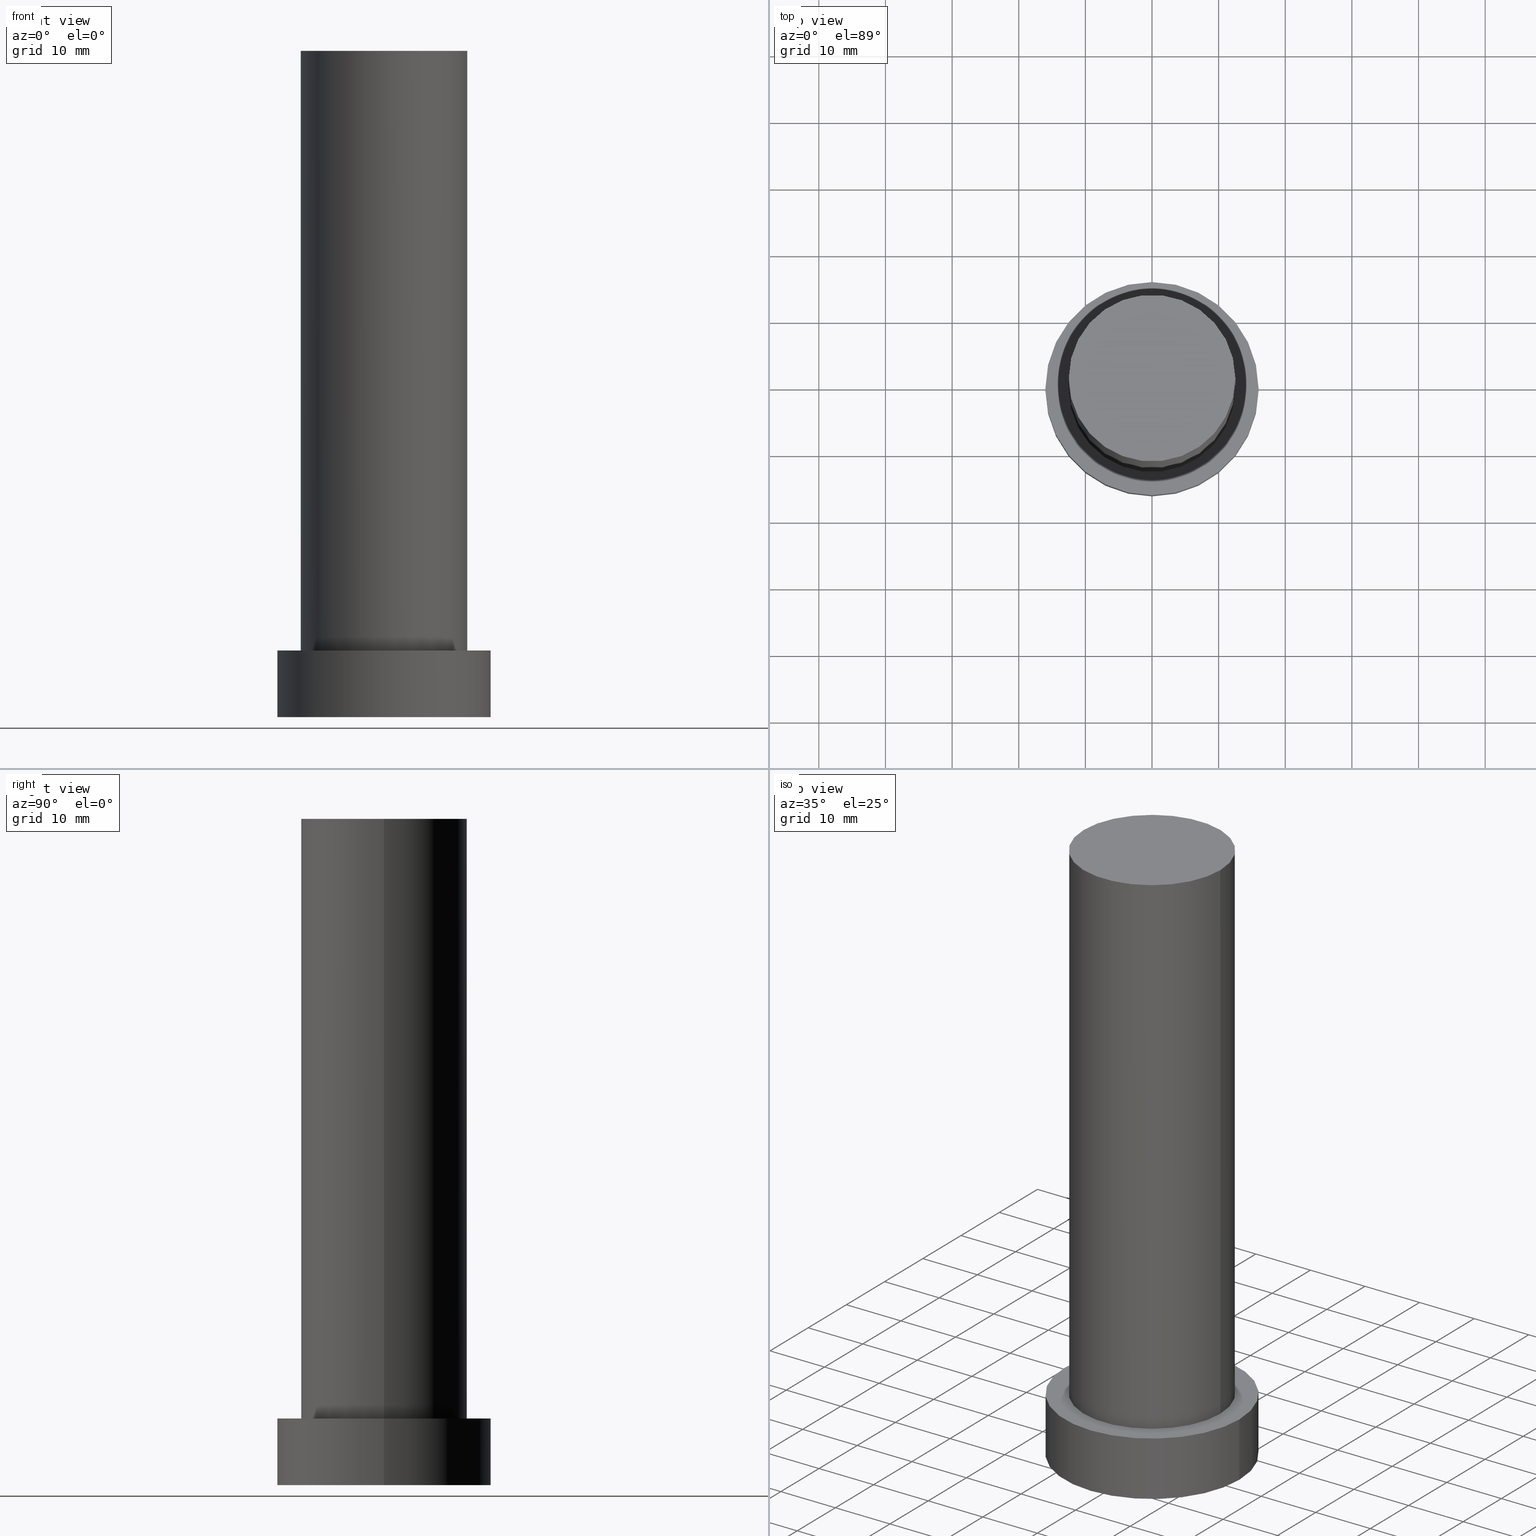
[diagram: canonical four-view strip — front | top / right | iso, engineering-drawing reading convention]
A machine part, canonical four-view strip (front | top / right | iso — engineering-drawing reading convention). The complete STEP part file that produces these views, byte-faithful:
ISO-10303-21;
HEADER;
FILE_DESCRIPTION (( 'STEP AP203' ),
    '1' );
FILE_NAME ('8e11.STEP',
    '2026-02-06T12:35:35',
    ( '' ),
    ( '' ),
    'SwSTEP 2.0',
    'SolidWorks 2019',
    '' );
FILE_SCHEMA (( 'CONFIG_CONTROL_DESIGN' ));
ENDSEC;

DATA;
#1 = CARTESIAN_POINT ( 'NONE',  ( -12.50000000000000000, 0.000000000000000000, 99.99999999999998579 ) ) ;
#2 = PRODUCT_DEFINITION_SHAPE ( 'NONE', 'NONE',  #251 ) ;
#3 = APPROVAL_STATUS ( 'not_yet_approved' ) ;
#4 = ADVANCED_FACE ( 'NONE', ( #96 ), #15, .T. ) ;
#5 = VERTEX_POINT ( 'NONE', #40 ) ;
#6 = VERTEX_POINT ( 'NONE', #191 ) ;
#7 = PLANE ( 'NONE',  #16 ) ;
#8 = DIRECTION ( 'NONE',  ( 0.000000000000000000, 0.000000000000000000, 1.000000000000000000 ) ) ;
#9 = CARTESIAN_POINT ( 'NONE',  ( 0.000000000000000000, 0.000000000000000000, 10.00000000000000000 ) ) ;
#10 = CARTESIAN_POINT ( 'NONE',  ( 0.000000000000000000, 0.000000000000000000, 99.99999999999998579 ) ) ;
#11 = FACE_OUTER_BOUND ( 'NONE', #241, .T. ) ;
#12 =( NAMED_UNIT ( * ) SI_UNIT ( $, .STERADIAN. ) SOLID_ANGLE_UNIT ( ) );
#13 = DATE_TIME_ROLE ( 'creation_date' ) ;
#14 = ADVANCED_FACE ( 'NONE', ( #236, #157 ), #58, .T. ) ;
#15 = CYLINDRICAL_SURFACE ( 'NONE', #93, 16.00000000000000000 ) ;
#16 = AXIS2_PLACEMENT_3D ( 'NONE', #123, #91, #169 ) ;
#17 = DIRECTION ( 'NONE',  ( 0.000000000000000000, 0.000000000000000000, 1.000000000000000000 ) ) ;
#18 = CARTESIAN_POINT ( 'NONE',  ( 0.000000000000000000, 0.000000000000000000, 10.00000000000000000 ) ) ;
#19 = APPROVAL_DATE_TIME ( #197, #188 ) ;
#20 = SECURITY_CLASSIFICATION ( '', '', #81 ) ;
#21 = VERTEX_POINT ( 'NONE', #212 ) ;
#22 = DATE_AND_TIME ( #124, #38 ) ;
#23 = DIRECTION ( 'NONE',  ( 1.000000000000000000, 0.000000000000000000, 0.000000000000000000 ) ) ;
#24 = APPROVAL_STATUS ( 'not_yet_approved' ) ;
#25 = EDGE_CURVE ( 'NONE', #5, #83, #175, .T. ) ;
#26 = VERTEX_POINT ( 'NONE', #1 ) ;
#27 = CC_DESIGN_APPROVAL ( #47, ( #20 ) ) ;
#28 = CARTESIAN_POINT ( 'NONE',  ( 0.000000000000000000, 0.000000000000000000, 0.000000000000000000 ) ) ;
#29 = ADVANCED_FACE ( 'NONE', ( #135 ), #56, .T. ) ;
#30 = COORDINATED_UNIVERSAL_TIME_OFFSET ( 1, 0, .AHEAD. ) ;
#31 = AXIS2_PLACEMENT_3D ( 'NONE', #28, #8, #65 ) ;
#32 = CARTESIAN_POINT ( 'NONE',  ( 0.000000000000000000, 0.000000000000000000, 10.00000000000000000 ) ) ;
#33 = EDGE_CURVE ( 'NONE', #6, #83, #131, .T. ) ;
#34 = AXIS2_PLACEMENT_3D ( 'NONE', #242, #177, #239 ) ;
#35 = CIRCLE ( 'NONE', #226, 12.50000000000000000 ) ;
#36 = CIRCLE ( 'NONE', #151, 16.00000000000000000 ) ;
#37 =( LENGTH_UNIT ( ) NAMED_UNIT ( * ) SI_UNIT ( .MILLI., .METRE. ) );
#38 = LOCAL_TIME ( 13, 35, 35.00000000000000000, #249 ) ;
#39 = DIRECTION ( 'NONE',  ( 1.000000000000000000, 0.000000000000000000, 0.000000000000000000 ) ) ;
#40 = CARTESIAN_POINT ( 'NONE',  ( 12.50000000000000000, 1.530808498934191127E-15, 99.99999999999998579 ) ) ;
#41 = DIRECTION ( 'NONE',  ( 1.000000000000000000, 0.000000000000000000, 0.000000000000000000 ) ) ;
#42 = DIRECTION ( 'NONE',  ( -0.000000000000000000, -0.000000000000000000, -1.000000000000000000 ) ) ;
#43 = APPLICATION_PROTOCOL_DEFINITION ( 'international standard', 'config_control_design', 1994, #189 ) ;
#44 = CARTESIAN_POINT ( 'NONE',  ( 12.50000000000000000, 1.530808498934191127E-15, 10.00000000000000000 ) ) ;
#45 = ORIENTED_EDGE ( 'NONE', *, *, #254, .F. ) ;
#46 = EDGE_CURVE ( 'NONE', #26, #5, #80, .T. ) ;
#47 = APPROVAL ( #24, 'NEUR�EN�' ) ;
#48 = ORIENTED_EDGE ( 'NONE', *, *, #90, .F. ) ;
#49 = CALENDAR_DATE ( 2026, 6, 2 ) ;
#50 = ORIENTED_EDGE ( 'NONE', *, *, #254, .T. ) ;
#51 = DIRECTION ( 'NONE',  ( 0.000000000000000000, 0.000000000000000000, 1.000000000000000000 ) ) ;
#52 = CARTESIAN_POINT ( 'NONE',  ( 0.000000000000000000, 0.000000000000000000, 10.00000000000000000 ) ) ;
#53 = CARTESIAN_POINT ( 'NONE',  ( -16.00000000000000000, 0.000000000000000000, 10.00000000000000000 ) ) ;
#54 = AXIS2_PLACEMENT_3D ( 'NONE', #171, #68, #107 ) ;
#55 = MECHANICAL_CONTEXT ( 'NONE', #78, 'mechanical' ) ;
#56 = CYLINDRICAL_SURFACE ( 'NONE', #243, 12.50000000000000000 ) ;
#57 = DIRECTION ( 'NONE',  ( 0.000000000000000000, 0.000000000000000000, 1.000000000000000000 ) ) ;
#58 = PLANE ( 'NONE',  #232 ) ;
#59 = APPROVAL_ROLE ( '' ) ;
#60 = ORIENTED_EDGE ( 'NONE', *, *, #147, .F. ) ;
#61 = AXIS2_PLACEMENT_3D ( 'NONE', #10, #88, #228 ) ;
#62 = PERSON_AND_ORGANIZATION ( #245, #71 ) ;
#63 = EDGE_LOOP ( 'NONE', ( #74, #165, #218, #50 ) ) ;
#64 = LINE ( 'NONE', #125, #200 ) ;
#65 = DIRECTION ( 'NONE',  ( 1.000000000000000000, 0.000000000000000000, 0.000000000000000000 ) ) ;
#66 = APPROVAL_ROLE ( '' ) ;
#67 = DIRECTION ( 'NONE',  ( -0.000000000000000000, -0.000000000000000000, -1.000000000000000000 ) ) ;
#68 = DIRECTION ( 'NONE',  ( 0.000000000000000000, 0.000000000000000000, 1.000000000000000000 ) ) ;
#69 = ADVANCED_FACE ( 'NONE', ( #159 ), #133, .F. ) ;
#70 = DIRECTION ( 'NONE',  ( -0.000000000000000000, -0.000000000000000000, -1.000000000000000000 ) ) ;
#71 = ORGANIZATION ( 'NEUR�EN�', 'NEUR�EN�', '' ) ;
#72 = DIRECTION ( 'NONE',  ( -0.000000000000000000, -0.000000000000000000, -1.000000000000000000 ) ) ;
#73 = APPROVAL_DATE_TIME ( #192, #84 ) ;
#74 = ORIENTED_EDGE ( 'NONE', *, *, #154, .F. ) ;
#75 = DIRECTION ( 'NONE',  ( -1.000000000000000000, 0.000000000000000000, 0.000000000000000000 ) ) ;
#76 = DATE_AND_TIME ( #237, #160 ) ;
#77 = APPROVAL_PERSON_ORGANIZATION ( #102, #188, #59 ) ;
#78 = APPLICATION_CONTEXT ( 'configuration controlled 3d designs of mechanical parts and assemblies' ) ;
#79 = EDGE_LOOP ( 'NONE', ( #45, #117 ) ) ;
#80 = CIRCLE ( 'NONE', #227, 12.50000000000000000 ) ;
#81 = SECURITY_CLASSIFICATION_LEVEL ( 'unclassified' ) ;
#82 = EDGE_CURVE ( 'NONE', #164, #185, #223, .T. ) ;
#83 = VERTEX_POINT ( 'NONE', #44 ) ;
#84 = APPROVAL ( #3, 'NEUR�EN�' ) ;
#85 = PRODUCT_DEFINITION_FORMATION_WITH_SPECIFIED_SOURCE ( 'LIBOVOLN�', '', #118, .NOT_KNOWN. ) ;
#86 = ORIENTED_EDGE ( 'NONE', *, *, #90, .T. ) ;
#87 = FACE_OUTER_BOUND ( 'NONE', #244, .T. ) ;
#88 = DIRECTION ( 'NONE',  ( -0.000000000000000000, -0.000000000000000000, -1.000000000000000000 ) ) ;
#89 = DIRECTION ( 'NONE',  ( 1.000000000000000000, 0.000000000000000000, 0.000000000000000000 ) ) ;
#90 = EDGE_CURVE ( 'NONE', #26, #6, #178, .T. ) ;
#91 = DIRECTION ( 'NONE',  ( 0.000000000000000000, 0.000000000000000000, 1.000000000000000000 ) ) ;
#92 = ADVANCED_BREP_SHAPE_REPRESENTATION ( '8e11', ( #255, #34 ), #113 ) ;
#93 = AXIS2_PLACEMENT_3D ( 'NONE', #193, #42, #75 ) ;
#94 = DIRECTION ( 'NONE',  ( 0.000000000000000000, 0.000000000000000000, 1.000000000000000000 ) ) ;
#95 = ADVANCED_FACE ( 'NONE', ( #11 ), #170, .T. ) ;
#96 = FACE_OUTER_BOUND ( 'NONE', #63, .T. ) ;
#97 = PERSON_AND_ORGANIZATION_ROLE ( 'creator' ) ;
#98 = AXIS2_PLACEMENT_3D ( 'NONE', #155, #128, #41 ) ;
#99 = DIRECTION ( 'NONE',  ( 1.000000000000000000, 0.000000000000000000, -0.000000000000000000 ) ) ;
#100 = CC_DESIGN_PERSON_AND_ORGANIZATION_ASSIGNMENT ( #219, #104, ( #85 ) ) ;
#101 = CARTESIAN_POINT ( 'NONE',  ( 0.000000000000000000, 0.000000000000000000, 99.99999999999998579 ) ) ;
#102 = PERSON_AND_ORGANIZATION ( #245, #71 ) ;
#103 = ORIENTED_EDGE ( 'NONE', *, *, #25, .T. ) ;
#104 = PERSON_AND_ORGANIZATION_ROLE ( 'design_supplier' ) ;
#105 = ORIENTED_EDGE ( 'NONE', *, *, #25, .F. ) ;
#106 = FACE_OUTER_BOUND ( 'NONE', #182, .T. ) ;
#107 = DIRECTION ( 'NONE',  ( 1.000000000000000000, 0.000000000000000000, 0.000000000000000000 ) ) ;
#108 = AXIS2_PLACEMENT_3D ( 'NONE', #52, #67, #248 ) ;
#109 = ADVANCED_FACE ( 'NONE', ( #87 ), #152, .T. ) ;
#110 = DIRECTION ( 'NONE',  ( -0.000000000000000000, -0.000000000000000000, -1.000000000000000000 ) ) ;
#111 = VECTOR ( 'NONE', #110, 1000.000000000000000 ) ;
#112 = ORIENTED_EDGE ( 'NONE', *, *, #201, .T. ) ;
#113 =( GEOMETRIC_REPRESENTATION_CONTEXT ( 3 ) GLOBAL_UNCERTAINTY_ASSIGNED_CONTEXT ( ( #199 ) ) GLOBAL_UNIT_ASSIGNED_CONTEXT ( ( #37, #127, #12 ) ) REPRESENTATION_CONTEXT ( 'NONE', 'WORKASPACE' ) );
#114 = CC_DESIGN_PERSON_AND_ORGANIZATION_ASSIGNMENT ( #134, #97, ( #251 ) ) ;
#115 = SHAPE_DEFINITION_REPRESENTATION ( #2, #92 ) ;
#116 = COORDINATED_UNIVERSAL_TIME_OFFSET ( 1, 0, .AHEAD. ) ;
#117 = ORIENTED_EDGE ( 'NONE', *, *, #181, .F. ) ;
#118 = PRODUCT ( '8e11', '8e11', '', ( #55 ) ) ;
#119 = ORIENTED_EDGE ( 'NONE', *, *, #46, .T. ) ;
#120 = ORIENTED_EDGE ( 'NONE', *, *, #201, .F. ) ;
#121 = PERSON_AND_ORGANIZATION ( #245, #71 ) ;
#122 = DESIGN_CONTEXT ( 'detailed design', #189, 'design' ) ;
#123 = CARTESIAN_POINT ( 'NONE',  ( 0.000000000000000000, 0.000000000000000000, 99.99999999999998579 ) ) ;
#124 = CALENDAR_DATE ( 2026, 6, 2 ) ;
#125 = CARTESIAN_POINT ( 'NONE',  ( 16.00000000000000000, 1.959434878635765131E-15, 10.00000000000000000 ) ) ;
#126 = AXIS2_PLACEMENT_3D ( 'NONE', #194, #17, #99 ) ;
#127 =( NAMED_UNIT ( * ) PLANE_ANGLE_UNIT ( ) SI_UNIT ( $, .RADIAN. ) );
#128 = DIRECTION ( 'NONE',  ( 0.000000000000000000, 0.000000000000000000, 1.000000000000000000 ) ) ;
#129 = CC_DESIGN_APPROVAL ( #84, ( #251 ) ) ;
#130 = PERSON_AND_ORGANIZATION_ROLE ( 'classification_officer' ) ;
#131 = CIRCLE ( 'NONE', #98, 12.50000000000000000 ) ;
#132 = PERSON_AND_ORGANIZATION_ROLE ( 'design_owner' ) ;
#133 = PLANE ( 'NONE',  #126 ) ;
#134 = PERSON_AND_ORGANIZATION ( #245, #71 ) ;
#135 = FACE_OUTER_BOUND ( 'NONE', #142, .T. ) ;
#136 = APPLICATION_PROTOCOL_DEFINITION ( 'international standard', 'config_control_design', 1994, #78 ) ;
#137 = EDGE_CURVE ( 'NONE', #185, #164, #36, .T. ) ;
#138 = ORIENTED_EDGE ( 'NONE', *, *, #33, .T. ) ;
#139 = CALENDAR_DATE ( 2026, 6, 2 ) ;
#140 = EDGE_LOOP ( 'NONE', ( #163, #247 ) ) ;
#141 = LOCAL_TIME ( 13, 35, 35.00000000000000000, #158 ) ;
#142 = EDGE_LOOP ( 'NONE', ( #105, #198, #86, #138 ) ) ;
#143 = CIRCLE ( 'NONE', #31, 16.00000000000000000 ) ;
#144 = ORIENTED_EDGE ( 'NONE', *, *, #154, .T. ) ;
#145 = CARTESIAN_POINT ( 'NONE',  ( -16.00000000000000000, 0.000000000000000000, 10.00000000000000000 ) ) ;
#146 = DATE_TIME_ROLE ( 'classification_date' ) ;
#147 = EDGE_CURVE ( 'NONE', #164, #224, #203, .T. ) ;
#148 = CC_DESIGN_PERSON_AND_ORGANIZATION_ASSIGNMENT ( #180, #156, ( #85 ) ) ;
#149 = LOCAL_TIME ( 13, 35, 35.00000000000000000, #116 ) ;
#150 = DIRECTION ( 'NONE',  ( 0.000000000000000000, 0.000000000000000000, 1.000000000000000000 ) ) ;
#151 = AXIS2_PLACEMENT_3D ( 'NONE', #9, #150, #89 ) ;
#152 = CYLINDRICAL_SURFACE ( 'NONE', #61, 12.50000000000000000 ) ;
#153 = CC_DESIGN_SECURITY_CLASSIFICATION ( #20, ( #85 ) ) ;
#154 = EDGE_CURVE ( 'NONE', #185, #21, #64, .T. ) ;
#155 = CARTESIAN_POINT ( 'NONE',  ( 0.000000000000000000, 0.000000000000000000, 10.00000000000000000 ) ) ;
#156 = PERSON_AND_ORGANIZATION_ROLE ( 'creator' ) ;
#157 = FACE_OUTER_BOUND ( 'NONE', #140, .T. ) ;
#158 = COORDINATED_UNIVERSAL_TIME_OFFSET ( 1, 0, .AHEAD. ) ;
#159 = FACE_OUTER_BOUND ( 'NONE', #79, .T. ) ;
#160 = LOCAL_TIME ( 13, 35, 35.00000000000000000, #211 ) ;
#161 = APPROVAL_DATE_TIME ( #22, #47 ) ;
#162 = APPROVAL_STATUS ( 'not_yet_approved' ) ;
#163 = ORIENTED_EDGE ( 'NONE', *, *, #82, .T. ) ;
#164 = VERTEX_POINT ( 'NONE', #145 ) ;
#165 = ORIENTED_EDGE ( 'NONE', *, *, #82, .F. ) ;
#166 = ORIENTED_EDGE ( 'NONE', *, *, #221, .F. ) ;
#167 = DIRECTION ( 'NONE',  ( -0.000000000000000000, -0.000000000000000000, -1.000000000000000000 ) ) ;
#168 = DATE_AND_TIME ( #49, #229 ) ;
#169 = DIRECTION ( 'NONE',  ( 1.000000000000000000, 0.000000000000000000, -0.000000000000000000 ) ) ;
#170 = CYLINDRICAL_SURFACE ( 'NONE', #108, 16.00000000000000000 ) ;
#171 = CARTESIAN_POINT ( 'NONE',  ( 0.000000000000000000, 0.000000000000000000, 99.99999999999998579 ) ) ;
#172 = CIRCLE ( 'NONE', #54, 12.50000000000000000 ) ;
#173 = CARTESIAN_POINT ( 'NONE',  ( 12.50000000000000000, 1.530808498934191127E-15, 99.99999999999998579 ) ) ;
#174 = CALENDAR_DATE ( 2026, 6, 2 ) ;
#175 = LINE ( 'NONE', #173, #184 ) ;
#176 = CARTESIAN_POINT ( 'NONE',  ( 0.000000000000000000, 0.000000000000000000, 10.00000000000000000 ) ) ;
#177 = DIRECTION ( 'NONE',  ( 0.000000000000000000, 0.000000000000000000, 1.000000000000000000 ) ) ;
#178 = LINE ( 'NONE', #233, #111 ) ;
#179 = CC_DESIGN_APPROVAL ( #188, ( #85 ) ) ;
#180 = PERSON_AND_ORGANIZATION ( #245, #71 ) ;
#181 = EDGE_CURVE ( 'NONE', #21, #224, #143, .T. ) ;
#182 = EDGE_LOOP ( 'NONE', ( #119, #186 ) ) ;
#183 = PRODUCT_RELATED_PRODUCT_CATEGORY ( 'detail', '', ( #118 ) ) ;
#184 = VECTOR ( 'NONE', #72, 1000.000000000000000 ) ;
#185 = VERTEX_POINT ( 'NONE', #205 ) ;
#186 = ORIENTED_EDGE ( 'NONE', *, *, #221, .T. ) ;
#187 = CLOSED_SHELL ( 'NONE', ( #109, #95, #4, #14, #69, #29, #206 ) ) ;
#188 = APPROVAL ( #162, 'NEUR�EN�' ) ;
#189 = APPLICATION_CONTEXT ( 'configuration controlled 3d designs of mechanical parts and assemblies' ) ;
#190 = APPROVAL_PERSON_ORGANIZATION ( #121, #47, #66 ) ;
#191 = CARTESIAN_POINT ( 'NONE',  ( -12.50000000000000000, 0.000000000000000000, 10.00000000000000000 ) ) ;
#192 = DATE_AND_TIME ( #174, #141 ) ;
#193 = CARTESIAN_POINT ( 'NONE',  ( 0.000000000000000000, 0.000000000000000000, 10.00000000000000000 ) ) ;
#194 = CARTESIAN_POINT ( 'NONE',  ( 0.000000000000000000, 0.000000000000000000, 0.000000000000000000 ) ) ;
#195 = CIRCLE ( 'NONE', #204, 16.00000000000000000 ) ;
#196 = DIRECTION ( 'NONE',  ( 1.000000000000000000, 0.000000000000000000, 0.000000000000000000 ) ) ;
#197 = DATE_AND_TIME ( #139, #149 ) ;
#198 = ORIENTED_EDGE ( 'NONE', *, *, #46, .F. ) ;
#199 = UNCERTAINTY_MEASURE_WITH_UNIT (LENGTH_MEASURE( 1.000000000000000082E-05 ), #37, 'distance_accuracy_value', 'NONE');
#200 = VECTOR ( 'NONE', #250, 1000.000000000000000 ) ;
#201 = EDGE_CURVE ( 'NONE', #83, #6, #35, .T. ) ;
#202 = ORIENTED_EDGE ( 'NONE', *, *, #181, .T. ) ;
#203 = LINE ( 'NONE', #53, #253 ) ;
#204 = AXIS2_PLACEMENT_3D ( 'NONE', #231, #94, #39 ) ;
#205 = CARTESIAN_POINT ( 'NONE',  ( 16.00000000000000000, 1.959434878635765131E-15, 10.00000000000000000 ) ) ;
#206 = ADVANCED_FACE ( 'NONE', ( #106 ), #7, .T. ) ;
#207 = CC_DESIGN_PERSON_AND_ORGANIZATION_ASSIGNMENT ( #62, #132, ( #118 ) ) ;
#208 = CARTESIAN_POINT ( 'NONE',  ( -16.00000000000000000, 0.000000000000000000, 0.000000000000000000 ) ) ;
#209 = DIRECTION ( 'NONE',  ( 1.000000000000000000, 0.000000000000000000, 0.000000000000000000 ) ) ;
#210 = DIRECTION ( 'NONE',  ( 0.000000000000000000, 0.000000000000000000, 1.000000000000000000 ) ) ;
#211 = COORDINATED_UNIVERSAL_TIME_OFFSET ( 1, 0, .AHEAD. ) ;
#212 = CARTESIAN_POINT ( 'NONE',  ( 16.00000000000000000, 1.959434878635765131E-15, 0.000000000000000000 ) ) ;
#213 = PERSON_AND_ORGANIZATION ( #245, #71 ) ;
#214 = EDGE_LOOP ( 'NONE', ( #220, #120 ) ) ;
#215 = APPROVAL_ROLE ( '' ) ;
#216 = DIRECTION ( 'NONE',  ( 0.000000000000000000, 0.000000000000000000, 1.000000000000000000 ) ) ;
#217 = AXIS2_PLACEMENT_3D ( 'NONE', #176, #216, #196 ) ;
#218 = ORIENTED_EDGE ( 'NONE', *, *, #147, .T. ) ;
#219 = PERSON_AND_ORGANIZATION ( #245, #71 ) ;
#220 = ORIENTED_EDGE ( 'NONE', *, *, #33, .F. ) ;
#221 = EDGE_CURVE ( 'NONE', #5, #26, #172, .T. ) ;
#222 = CC_DESIGN_PERSON_AND_ORGANIZATION_ASSIGNMENT ( #235, #130, ( #20 ) ) ;
#223 = CIRCLE ( 'NONE', #217, 16.00000000000000000 ) ;
#224 = VERTEX_POINT ( 'NONE', #208 ) ;
#225 = APPROVAL_PERSON_ORGANIZATION ( #213, #84, #215 ) ;
#226 = AXIS2_PLACEMENT_3D ( 'NONE', #32, #51, #23 ) ;
#227 = AXIS2_PLACEMENT_3D ( 'NONE', #238, #57, #209 ) ;
#228 = DIRECTION ( 'NONE',  ( -1.000000000000000000, 0.000000000000000000, 0.000000000000000000 ) ) ;
#229 = LOCAL_TIME ( 13, 35, 35.00000000000000000, #30 ) ;
#230 = CC_DESIGN_DATE_AND_TIME_ASSIGNMENT ( #168, #146, ( #20 ) ) ;
#231 = CARTESIAN_POINT ( 'NONE',  ( 0.000000000000000000, 0.000000000000000000, 0.000000000000000000 ) ) ;
#232 = AXIS2_PLACEMENT_3D ( 'NONE', #18, #210, #252 ) ;
#233 = CARTESIAN_POINT ( 'NONE',  ( -12.50000000000000000, 0.000000000000000000, 99.99999999999998579 ) ) ;
#234 = DIRECTION ( 'NONE',  ( -1.000000000000000000, 0.000000000000000000, 0.000000000000000000 ) ) ;
#235 = PERSON_AND_ORGANIZATION ( #245, #71 ) ;
#236 = FACE_BOUND ( 'NONE', #214, .T. ) ;
#237 = CALENDAR_DATE ( 2026, 6, 2 ) ;
#238 = CARTESIAN_POINT ( 'NONE',  ( 0.000000000000000000, 0.000000000000000000, 99.99999999999998579 ) ) ;
#239 = DIRECTION ( 'NONE',  ( 1.000000000000000000, 0.000000000000000000, 0.000000000000000000 ) ) ;
#240 = CC_DESIGN_DATE_AND_TIME_ASSIGNMENT ( #76, #13, ( #251 ) ) ;
#241 = EDGE_LOOP ( 'NONE', ( #246, #144, #202, #60 ) ) ;
#242 = CARTESIAN_POINT ( 'NONE',  ( 0.000000000000000000, 0.000000000000000000, 0.000000000000000000 ) ) ;
#243 = AXIS2_PLACEMENT_3D ( 'NONE', #101, #70, #234 ) ;
#244 = EDGE_LOOP ( 'NONE', ( #166, #103, #112, #48 ) ) ;
#245 = PERSON ( 'NEUR�EN�', 'NEUR�EN�', 'NEUR�EN�', ('NEUR�EN�'), ('NEUR�EN�'), ('NEUR�EN�') ) ;
#246 = ORIENTED_EDGE ( 'NONE', *, *, #137, .F. ) ;
#247 = ORIENTED_EDGE ( 'NONE', *, *, #137, .T. ) ;
#248 = DIRECTION ( 'NONE',  ( -1.000000000000000000, 0.000000000000000000, 0.000000000000000000 ) ) ;
#249 = COORDINATED_UNIVERSAL_TIME_OFFSET ( 1, 0, .AHEAD. ) ;
#250 = DIRECTION ( 'NONE',  ( -0.000000000000000000, -0.000000000000000000, -1.000000000000000000 ) ) ;
#251 = PRODUCT_DEFINITION ( 'NEZN�M�', '', #85, #122 ) ;
#252 = DIRECTION ( 'NONE',  ( 1.000000000000000000, 0.000000000000000000, -0.000000000000000000 ) ) ;
#253 = VECTOR ( 'NONE', #167, 1000.000000000000000 ) ;
#254 = EDGE_CURVE ( 'NONE', #224, #21, #195, .T. ) ;
#255 = MANIFOLD_SOLID_BREP ( 'P�idat vysunut�m3', #187 ) ;
ENDSEC;
END-ISO-10303-21;
